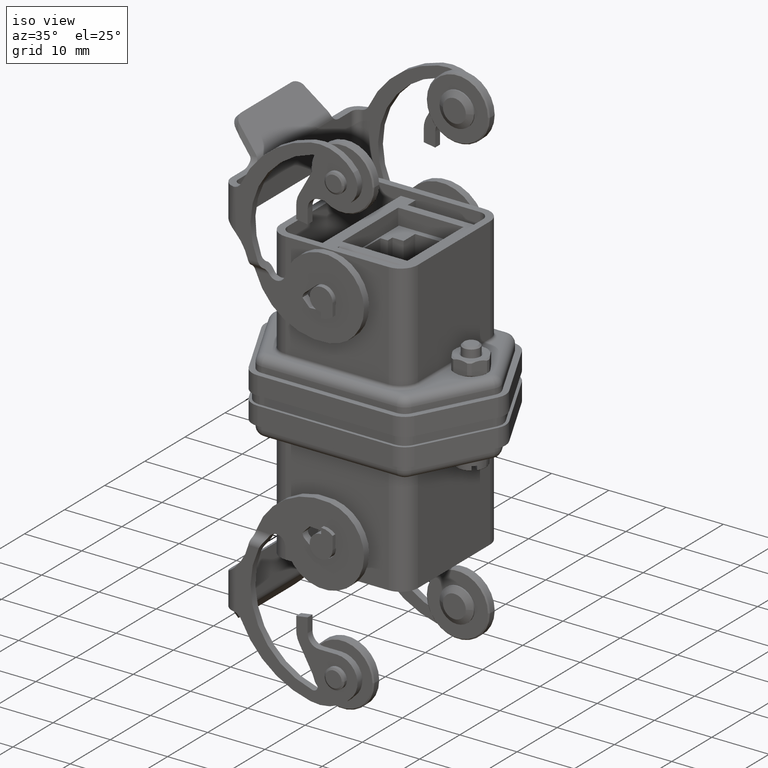
[diagram: clean part render]
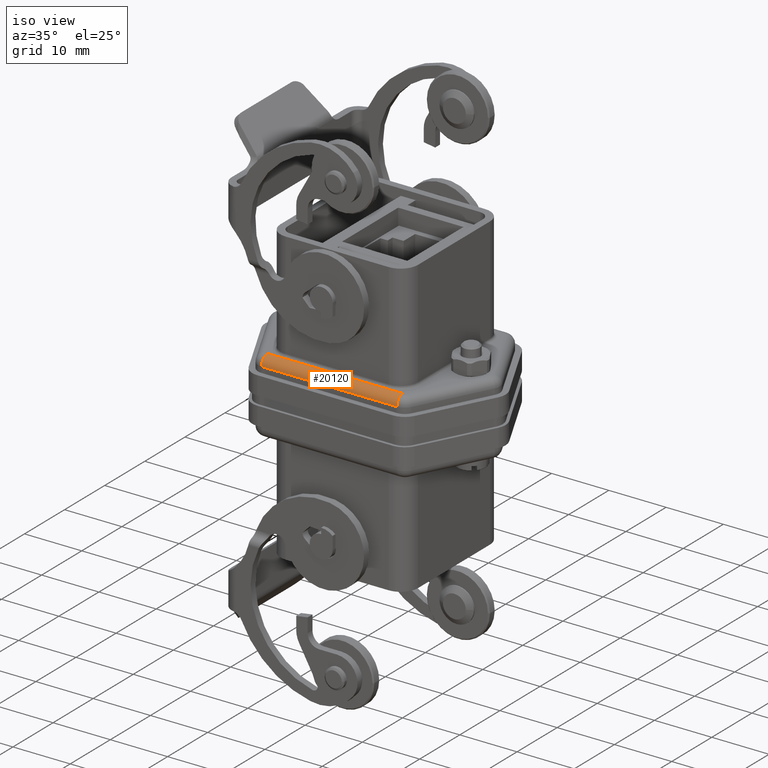
[diagram: same view with one face highlighted and labeled with its STEP entity id]
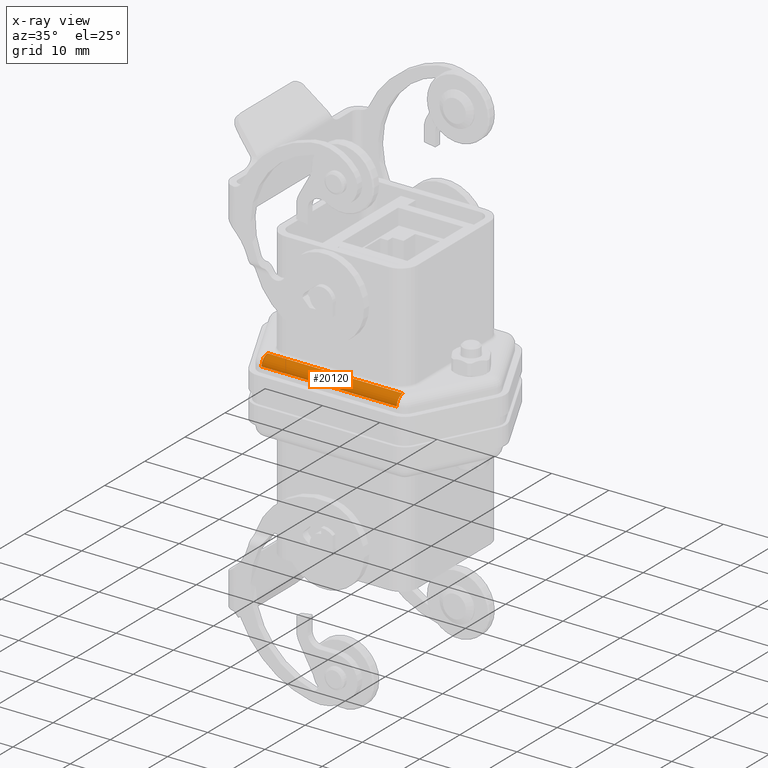
[diagram: x-ray of the same camera — body ghosted, the highlighted face saturated]
A machine part, iso view. The second image highlights one B-rep face of the part: STEP entity #20120.
The next image is the same camera in x-ray: the body ghosted, the highlighted face saturated — about 0% of this face is hidden behind the body in this view.
In plain terms, the highlighted cylindrical surface (edge-blend (fillet) strip) has radius 1.5 mm, axis along (-1, -0, -0).
Its self-contained STEP definition (entity closure, byte-faithful):
#19550=CARTESIAN_POINT('',(5.90767078078675,-12.5,-14.5));
#19560=DIRECTION('',(-1.,-9.396453E-17,-7.379713E-32));
#19570=DIRECTION('',(6.64429563540066E-17,-0.707106781186546,
0.707106781186549));
#19580=AXIS2_PLACEMENT_3D('',#19550,#19560,#19570);
#19590=CYLINDRICAL_SURFACE('',#19580,1.5);
#19600=CARTESIAN_POINT('',(-11.8153415615735,-14.,-14.5));
#19610=DIRECTION('',(1.,0.,0.));
#19620=VECTOR('',#19610,23.630683123147);
#19630=LINE('',#19600,#19620);
#19640=CARTESIAN_POINT('',(-11.8153415615735,-14.,-14.5));
#19650=VERTEX_POINT('',#19640);
#19660=CARTESIAN_POINT('',(11.8153415615735,-14.,-14.5));
#19670=VERTEX_POINT('',#19660);
#19680=EDGE_CURVE('',#19650,#19670,#19630,.T.);
#19690=ORIENTED_EDGE('',*,*,#19680,.T.);
#19700=CARTESIAN_POINT('',(-11.8153415615735,-12.5,-14.5));
#19710=DIRECTION('',(1.,0.,0.));
#19720=DIRECTION('',(0.,0.,1.));
#19730=AXIS2_PLACEMENT_3D('',#19700,#19710,#19720);
#19740=CIRCLE('',#19730,1.5);
#19750=CARTESIAN_POINT('',(-11.8153415615735,-12.5,-13.));
#19760=VERTEX_POINT('',#19750);
#19770=EDGE_CURVE('',#19760,#19650,#19740,.T.);
#19780=ORIENTED_EDGE('',*,*,#19770,.T.);
#19790=CARTESIAN_POINT('',(-9.,-12.5,-13.));
#19800=DIRECTION('',(-1.,0.,0.));
#19810=VECTOR('',#19800,2.8153415615735);
#19820=LINE('',#19790,#19810);
#19830=CARTESIAN_POINT('',(-9.,-12.5,-13.));
#19840=VERTEX_POINT('',#19830);
#19850=EDGE_CURVE('',#19840,#19760,#19820,.T.);
#19860=ORIENTED_EDGE('',*,*,#19850,.T.);
#19870=CARTESIAN_POINT('',(9.,-12.5,-13.));
#19880=DIRECTION('',(-1.,0.,0.));
#19890=VECTOR('',#19880,18.);
#19900=LINE('',#19870,#19890);
#19910=CARTESIAN_POINT('',(9.,-12.5,-13.));
#19920=VERTEX_POINT('',#19910);
#19930=EDGE_CURVE('',#19920,#19840,#19900,.T.);
#19940=ORIENTED_EDGE('',*,*,#19930,.T.);
#19950=CARTESIAN_POINT('',(11.8153415615735,-12.5,-13.));
#19960=DIRECTION('',(-1.,0.,0.));
#19970=VECTOR('',#19960,2.81534156157351);
#19980=LINE('',#19950,#19970);
#19990=CARTESIAN_POINT('',(11.8153415615735,-12.5,-13.));
#20000=VERTEX_POINT('',#19990);
#20010=EDGE_CURVE('',#20000,#19920,#19980,.T.);
#20020=ORIENTED_EDGE('',*,*,#20010,.T.);
#20030=CARTESIAN_POINT('',(11.8153415615735,-12.5,-14.5));
#20040=DIRECTION('',(-1.,0.,0.));
#20050=DIRECTION('',(0.,-1.,0.));
#20060=AXIS2_PLACEMENT_3D('',#20030,#20040,#20050);
#20070=CIRCLE('',#20060,1.5);
#20080=EDGE_CURVE('',#19670,#20000,#20070,.T.);
#20090=ORIENTED_EDGE('',*,*,#20080,.T.);
#20100=EDGE_LOOP('',(#20090,#20020,#19940,#19860,#19780,#19690));
#20110=FACE_OUTER_BOUND('',#20100,.T.);
#20120=ADVANCED_FACE('',(#20110),#19590,.T.);